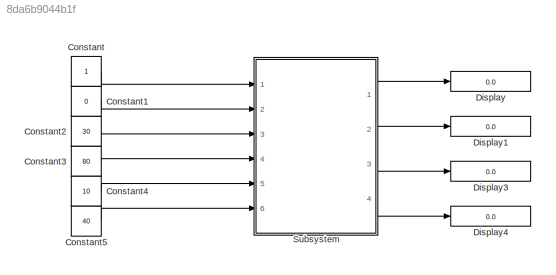
MODEL slx_8da6b9044b1f
KIND model
CONFIG AbsTol = auto
CONFIG EnableMultiTasking = off
CONFIG FixedStep = auto
CONFIG MaxStep = auto
CONFIG MinStep = auto
CONFIG RelTol = 1e-3
CONFIG SampleTimeConstraint = Unconstrained
CONFIG Solver = VariableStepAuto
CONFIG SolverName = VariableStepAuto
CONFIG StartTime = 0.0
CONFIG StopTime = inf
BLOCK [Constant] Constant
BLOCK [Constant] Constant1
  Value = 0
BLOCK [Constant] Constant2
  Value = 30
BLOCK [Constant] Constant3
  Value = 80
BLOCK [Constant] Constant4
  Value = 10
BLOCK [Constant] Constant5
  Value = 40
BLOCK [Display] Display
  Decimation = 1
  Ports = [1]
BLOCK [Display] Display1
  Decimation = 1
  Ports = [1]
BLOCK [Display] Display3
  Decimation = 1
  Ports = [1]
BLOCK [Display] Display4
  Decimation = 1
  Ports = [1]
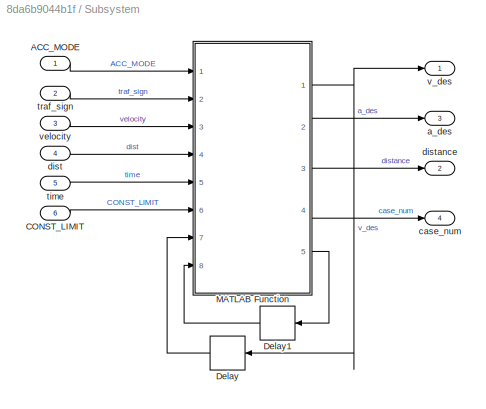
BLOCK [SubSystem] Subsystem
  Ports = [6, 4]
  RequestExecContextInheritance = off
BLOCK [Inport] Subsystem/ACC_MODE
  IconDisplay = Port number
BLOCK [Inport] Subsystem/CONST_LIMIT
  IconDisplay = Port number
  Port = 6
BLOCK [Delay] Subsystem/Delay
  DelayLength = 1
  InputPortMap = u0
  Ports = [1, 1]
BLOCK [Delay] Subsystem/Delay1
  DelayLength = 1
  InputPortMap = u0
  Ports = [1, 1]
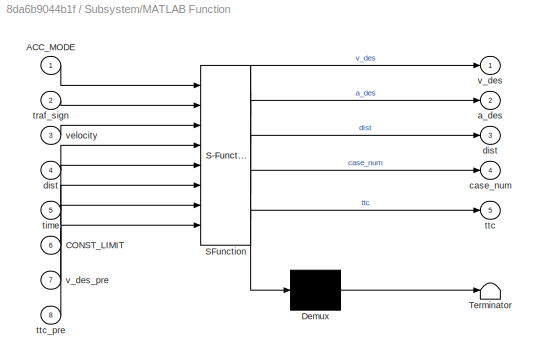
BLOCK [SubSystem] Subsystem/MATLAB Function
  ErrorFcn = Stateflow.Translate.translate
  PermitHierarchicalResolution = ExplicitOnly
  Ports = [8, 5]
  RequestExecContextInheritance = off
  SFBlockType = MATLAB Function
  TreatAsAtomicUnit = on
BLOCK [Demux] Subsystem/MATLAB Function/ Demux 
  Outputs = 1
  Ports = [1, 1]
BLOCK [S-Function] Subsystem/MATLAB Function/ SFunction 
  EnableBusSupport = on
  FunctionName = sf_sfun
  PortCounts = [8 6]
  Ports = [8, 6]
  SFcnIsStateOwnerBlock = off
  SFunctionDeploymentMode = off
  Tag = Stateflow S-Function 5
BLOCK [Terminator] Subsystem/MATLAB Function/ Terminator 
BLOCK [Inport] Subsystem/MATLAB Function/ACC_MODE
  IconDisplay = Port number
BLOCK [Inport] Subsystem/MATLAB Function/CONST_LIMIT
  IconDisplay = Port number
  Port = 6
BLOCK [Outport] Subsystem/MATLAB Function/a_des
  IconDisplay = Port number
  Port = 2
BLOCK [Outport] Subsystem/MATLAB Function/case_num
  IconDisplay = Port number
  Port = 4
BLOCK [Outport] Subsystem/MATLAB Function/dist
  IconDisplay = Port number
  Port = 3
BLOCK [Inport] Subsystem/MATLAB Function/dist 
  IconDisplay = Port number
  Port = 4
BLOCK [Inport] Subsystem/MATLAB Function/time
  IconDisplay = Port number
  Port = 5
BLOCK [Inport] Subsystem/MATLAB Function/traf_sign
  IconDisplay = Port number
  Port = 2
BLOCK [Outport] Subsystem/MATLAB Function/ttc
  IconDisplay = Port number
  Port = 5
BLOCK [Inport] Subsystem/MATLAB Function/ttc_pre
  IconDisplay = Port number
  Port = 8
BLOCK [Outport] Subsystem/MATLAB Function/v_des
  IconDisplay = Port number
BLOCK [Inport] Subsystem/MATLAB Function/v_des_pre
  IconDisplay = Port number
  Port = 7
BLOCK [Inport] Subsystem/MATLAB Function/velocity
  IconDisplay = Port number
  Port = 3
BLOCK [Outport] Subsystem/a_des
  IconDisplay = Port number
  Port = 3
BLOCK [Outport] Subsystem/case_num
  IconDisplay = Port number
  Port = 4
BLOCK [Inport] Subsystem/dist
  IconDisplay = Port number
  Port = 4
BLOCK [Outport] Subsystem/distance
  IconDisplay = Port number
  Port = 2
BLOCK [Inport] Subsystem/time
  IconDisplay = Port number
  Port = 5
BLOCK [Inport] Subsystem/traf_sign
  IconDisplay = Port number
  Port = 2
BLOCK [Outport] Subsystem/v_des
  IconDisplay = Port number
BLOCK [Inport] Subsystem/velocity
  IconDisplay = Port number
  Port = 3
LINE Constant1:1 -> Subsystem:2
LINE Constant2:1 -> Subsystem:3
LINE Constant3:1 -> Subsystem:4
LINE Constant4:1 -> Subsystem:5
LINE Constant5:1 -> Subsystem:6
LINE Constant:1 -> Subsystem:1
LINE Subsystem/ACC_MODE:1 -> Subsystem/MATLAB Function:1
LINE Subsystem/CONST_LIMIT:1 -> Subsystem/MATLAB Function:6
LINE Subsystem/Delay1:1 -> Subsystem/MATLAB Function:8
LINE Subsystem/Delay:1 -> Subsystem/MATLAB Function:7
NET Subsystem/MATLAB Function:1 -> Subsystem/Delay:1, Subsystem/v_des:1
LINE Subsystem/MATLAB Function:2 -> Subsystem/a_des:1
LINE Subsystem/MATLAB Function:3 -> Subsystem/distance:1
LINE Subsystem/MATLAB Function:4 -> Subsystem/case_num:1
LINE Subsystem/MATLAB Function:5 -> Subsystem/Delay1:1
LINE Subsystem/dist:1 -> Subsystem/MATLAB Function:4
LINE Subsystem/time:1 -> Subsystem/MATLAB Function:5
LINE Subsystem/traf_sign:1 -> Subsystem/MATLAB Function:2
LINE Subsystem/velocity:1 -> Subsystem/MATLAB Function:3
LINE Subsystem:1 -> Display:1
LINE Subsystem:2 -> Display1:1
LINE Subsystem:3 -> Display3:1
LINE Subsystem:4 -> Display4:1
note: NET lines group one-source signal fan-out (src -> all destinations, sorted); 1:1 wires keep LINE
CHART Subsystem/MATLAB Function states=1 transitions=1
  STATE_LABEL 'eML_blk_kernel()'
  STATE_LABEL 'SCRIPT:\n\n% clc\n% clear all\n% close all\n% traf_sign = 0;\n% velocity = 30;\n% dist = 100;\n% time = 12;\n% CONST_LIMIT = 40;\n% ACC_MODE = 0;\n\nfunction [v_des,a_des,dist,case_num,ttc] = intesec_cross(ACC_MODE, traf_sign, velocity, dist, time,CONST_LIMIT,v_des_pre,ttc_pre)  \n%% this is a function that provide desired velocity, and distance to traffic light;\n    % input: trafic_sign with green = 0; red = ...<+3211ch>'
